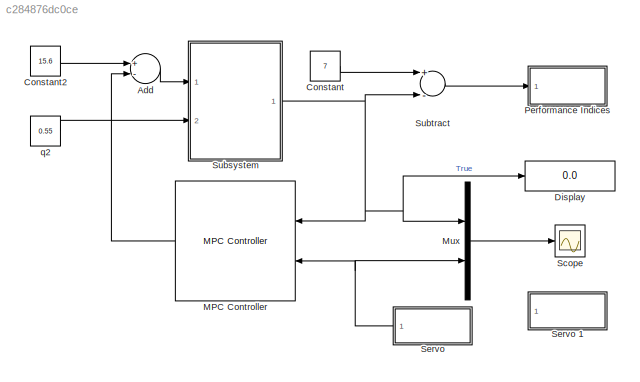
MODEL slx_c284876dc0ce
KIND model
CONFIG AbsTol = auto
CONFIG EnableMultiTasking = on
CONFIG FixedStep = auto
CONFIG MaxStep = auto
CONFIG MinStep = auto
CONFIG RelTol = 1e-3
CONFIG SampleTimeConstraint = Unconstrained
CONFIG Solver = ode45
CONFIG SolverName = ode45
CONFIG StartTime = 0.0
CONFIG StopTime = 10000
BLOCK [Sum] Add
  InputSameDT = off
  Inputs = +-
  OutDataTypeStr = Inherit: Inherit via internal rule
  Ports = [2, 1]
  SaturateOnIntegerOverflow = off
BLOCK [Constant] Constant
  Value = 7
BLOCK [Constant] Constant2
  Value = 15.6
BLOCK [Display] Display
  Decimation = 1
  Ports = [1]
BLOCK [Reference] MPC Controller  REF=mpclib/MPC Controller  (lib defined in mdl_ae329e0e0455)
  Ports = [2, 1]
  SCDEnableBlockLinearizationSpecification = on
  SourceBlock = mpclib/MPC Controller
  SourceProductBaseCode = Missing
  SourceProductName = MATLAB Runtime - Model Predictive Control Toolbox Addin
  SourceType = MPC
BLOCK [Mux] Mux
  DisplayOption = bar
  Inputs = 2
  Ports = [2, 1]
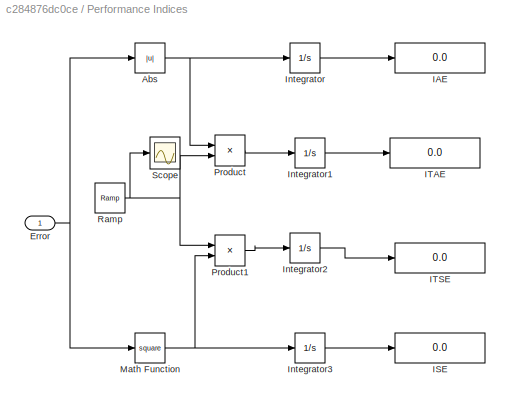
BLOCK [SubSystem] Performance Indices
  Ports = [1]
  RequestExecContextInheritance = off
BLOCK [Abs] Performance Indices/Abs
  SaturateOnIntegerOverflow = off
BLOCK [Inport] Performance Indices/Error 
  IconDisplay = Port number
BLOCK [Display] Performance Indices/IAE
  Decimation = 1
  Ports = [1]
BLOCK [Display] Performance Indices/ISE
  Decimation = 1
  Ports = [1]
BLOCK [Display] Performance Indices/ITAE
  Decimation = 1
  Ports = [1]
BLOCK [Display] Performance Indices/ITSE
  Decimation = 1
  Ports = [1]
BLOCK [Integrator] Performance Indices/Integrator
  Ports = [1, 1]
BLOCK [Integrator] Performance Indices/Integrator1
  Ports = [1, 1]
BLOCK [Integrator] Performance Indices/Integrator2
  Ports = [1, 1]
BLOCK [Integrator] Performance Indices/Integrator3
  Ports = [1, 1]
BLOCK [Math] Performance Indices/Math Function
  Operator = square
  Ports = [1, 1]
BLOCK [Product] Performance Indices/Product
  InputSameDT = off
  OutDataTypeStr = Inherit: Inherit via internal rule
  Ports = [2, 1]
  SaturateOnIntegerOverflow = off
BLOCK [Product] Performance Indices/Product1
  InputSameDT = off
  OutDataTypeStr = Inherit: Inherit via internal rule
  Ports = [2, 1]
  SaturateOnIntegerOverflow = off
BLOCK [Reference] Performance Indices/Ramp  REF=simulink/Sources/Ramp
  Ports = [0, 1]
  SourceBlock = simulink/Sources/Ramp
  SourceProductBaseCode = SL
  SourceProductName = Simulink
  SourceType = Ramp
BLOCK [Scope] Performance Indices/Scope
  Floating = off
  NumInputPorts = 1
  Ports = [1]
  ScopeSpecificationString = Simulink.scopes.TimeScopeBlockCfg('CurrentConfiguration', extmgr.ConfigurationSet(extmgr.Configuration('Core','General UI',true),extmgr.Configuration('Core','Source UI',true),extmgr.Configuration('Sources','WiredSimulink',true,'DataLoggingLimitDataPoints',true,'DataLoggingSaveFormat','Array','DataLoggingDecimation','1','DataLoggingDecimateData',true),extmgr.Configuration('Visuals','Time Domain',tr...<+860ch>
BLOCK [Scope] Scope
  Floating = off
  NumInputPorts = 1
  Ports = [1]
  ScopeSpecificationString = Simulink.scopes.TimeScopeBlockCfg('CurrentConfiguration', extmgr.ConfigurationSet(extmgr.Configuration('Core','General UI',true),extmgr.Configuration('Core','Source UI',true),extmgr.Configuration('Sources','WiredSimulink',true,'DataLoggingVariableName','ScopeData2'),extmgr.Configuration('Visuals','Time Domain',true,'SerializedDisplays',{struct('MinYLimReal','2.89594','MaxYLimReal','7.45814','YLabe...<+1396ch>
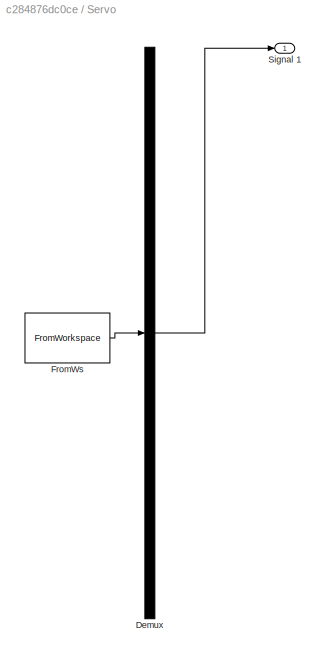
BLOCK [SubSystem] Servo 
  ClipboardFcn = sigbuilder_block('clipboard');
  CloseFcn = sigbuilder_block('close');
  ContinueFcn = sigbuilder_block('continue')
  CopyFcn = sigbuilder_block('copy');
  DeleteFcn = sigbuilder_block('delete');
  LoadFcn = sigbuilder_block('load');
  MaskHideContents = on
  ModelCloseFcn = sigbuilder_block('modelClose');
  NameChangeFcn = sigbuilder_block('namechange');
  OpenFcn = sigbuilder_block('open',[203.25 112.5 550.5 399.75 ]);
  PauseFcn = sigbuilder_block('pause')
  Ports = [0, 1]
  PreSaveFcn = sigbuilder_block('preSave');
  RequestExecContextInheritance = off
  StartFcn = sigbuilder_block('start');
  StopFcn = sigbuilder_block('stop');
  Tag = STV Subsys
BLOCK [Demux] Servo /Demux
  Outputs = 1
  Ports = [1, 1]
  Tag = STV Demux
BLOCK [FromWorkspace] Servo /FromWs
  SampleTime = 0
  Tag = STV FromWs
  VariableName = tuvar
  ZeroCross = on
BLOCK [Outport] Servo /Signal 1
  IconDisplay = Port number
  Tag = STV Outport
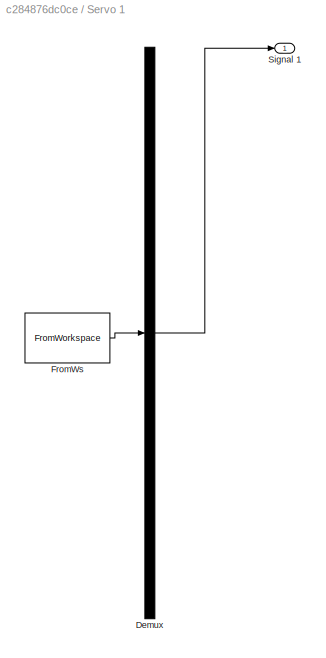
BLOCK [SubSystem] Servo 1
  ClipboardFcn = sigbuilder_block('clipboard');
  CloseFcn = sigbuilder_block('close');
  ContinueFcn = sigbuilder_block('continue')
  CopyFcn = sigbuilder_block('copy');
  DeleteFcn = sigbuilder_block('delete');
  LoadFcn = sigbuilder_block('load');
  MaskHideContents = on
  ModelCloseFcn = sigbuilder_block('modelClose');
  NameChangeFcn = sigbuilder_block('namechange');
  OpenFcn = sigbuilder_block('open',[203.25 112.5 550.5 399.75 ]);
  PauseFcn = sigbuilder_block('pause')
  Ports = [0, 1]
  PreSaveFcn = sigbuilder_block('preSave');
  RequestExecContextInheritance = off
  StartFcn = sigbuilder_block('start');
  StopFcn = sigbuilder_block('stop');
  Tag = STV Subsys
BLOCK [Demux] Servo 1/Demux
  Outputs = 1
  Ports = [1, 1]
  Tag = STV Demux
BLOCK [FromWorkspace] Servo 1/FromWs
  SampleTime = 0
  Tag = STV FromWs
  VariableName = tuvar
  ZeroCross = on
BLOCK [Outport] Servo 1/Signal 1
  IconDisplay = Port number
  Tag = STV Outport
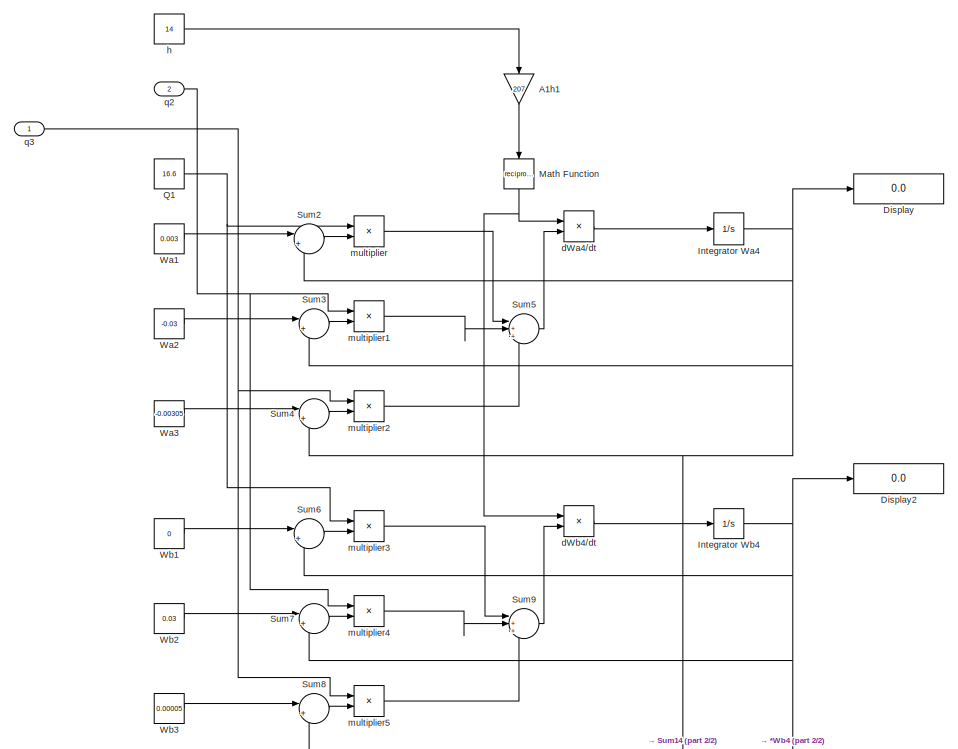
[diagram: Subsystem - part 1/2, full width, top band]
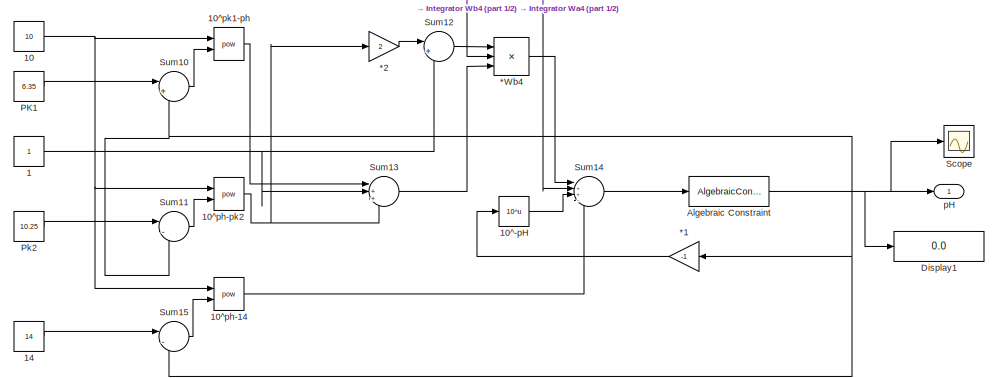
[diagram: Subsystem - part 2/2, full width, bottom band]
BLOCK [SubSystem] Subsystem
  Ports = [2, 1]
  RequestExecContextInheritance = off
BLOCK [Gain] Subsystem/*1
  Gain = -1
  OutDataTypeStr = Inherit: Inherit via internal rule
  ParamDataTypeStr = Inherit: Inherit via internal rule
  SaturateOnIntegerOverflow = off
BLOCK [Gain] Subsystem/*2
  Gain = 2
  OutDataTypeStr = Inherit: Inherit via internal rule
  ParamDataTypeStr = Inherit: Inherit via internal rule
  SaturateOnIntegerOverflow = off
BLOCK [Product] Subsystem/*Wb4
  InputSameDT = off
  Inputs = **/
  OutDataTypeStr = Inherit: Inherit via internal rule
  Ports = [3, 1]
  RndMeth = Floor
  SaturateOnIntegerOverflow = off
BLOCK [Constant] Subsystem/1
BLOCK [Constant] Subsystem/10
  Value = 10
BLOCK [Math] Subsystem/10^-pH
  Operator = 10^u
  Ports = [1, 1]
BLOCK [Math] Subsystem/10^ph-14
  Operator = pow
  Ports = [2, 1]
BLOCK [Math] Subsystem/10^ph-pk2
  Operator = pow
  Ports = [2, 1]
BLOCK [Math] Subsystem/10^pk1-ph
  Operator = pow
  Ports = [2, 1]
BLOCK [Constant] Subsystem/14
  Value = 14
BLOCK [Gain] Subsystem/A1h1
  Gain = 207
  OutDataTypeStr = Inherit: Inherit via internal rule
  ParamDataTypeStr = Inherit: Inherit via internal rule
  SaturateOnIntegerOverflow = off
BLOCK [AlgebraicConstraint] Subsystem/Algebraic Constraint
  InitialGuess = 7
BLOCK [Display] Subsystem/Display
  Decimation = 1
  Ports = [1]
BLOCK [Display] Subsystem/Display1
  Decimation = 1
  Ports = [1]
BLOCK [Display] Subsystem/Display2
  Decimation = 1
  Ports = [1]
BLOCK [Integrator] Subsystem/Integrator Wa4
  InitialCondition = -0.000432
  Ports = [1, 1]
BLOCK [Integrator] Subsystem/Integrator Wb4
  InitialCondition = 0.000528
  Ports = [1, 1]
BLOCK [Math] Subsystem/Math Function
  Operator = reciprocal
  Ports = [1, 1]
BLOCK [Constant] Subsystem/PK1
  Value = 6.35
BLOCK [Constant] Subsystem/Pk2
  Value = 10.25
BLOCK [Constant] Subsystem/Q1
  Value = 16.6
BLOCK [Scope] Subsystem/Scope
  Floating = off
  NumInputPorts = 1
  Ports = [1]
  ScopeSpecificationString = Simulink.scopes.TimeScopeBlockCfg('CurrentConfiguration', extmgr.ConfigurationSet(extmgr.Configuration('Core','General UI',true),extmgr.Configuration('Core','Source UI',true),extmgr.Configuration('Sources','WiredSimulink',true,'DataLoggingVariableName','ScopeData1'),extmgr.Configuration('Visuals','Time Domain',true,'SerializedDisplays',{struct('MinYLimReal','8.21783','MaxYLimReal','8.22243','YLabe...<+1405ch>
BLOCK [Sum] Subsystem/Sum10
  IconShape = round
  InputSameDT = off
  Inputs = |+-
  OutDataTypeStr = Inherit: Inherit via internal rule
  Ports = [2, 1]
  SaturateOnIntegerOverflow = off
BLOCK [Sum] Subsystem/Sum11
  IconShape = round
  InputSameDT = off
  Inputs = |-+
  OutDataTypeStr = Inherit: Inherit via internal rule
  Ports = [2, 1]
  SaturateOnIntegerOverflow = off
BLOCK [Sum] Subsystem/Sum12
  IconShape = round
  InputSameDT = off
  Inputs = |++
  OutDataTypeStr = Inherit: Inherit via internal rule
  Ports = [2, 1]
  SaturateOnIntegerOverflow = off
BLOCK [Sum] Subsystem/Sum13
  IconShape = round
  InputSameDT = off
  Inputs = |+++
  OutDataTypeStr = Inherit: Inherit via internal rule
  Ports = [3, 1]
  SaturateOnIntegerOverflow = off
BLOCK [Sum] Subsystem/Sum14
  IconShape = round
  InputSameDT = off
  Inputs = |++-+
  OutDataTypeStr = Inherit: Inherit via internal rule
  Ports = [4, 1]
  SaturateOnIntegerOverflow = off
BLOCK [Sum] Subsystem/Sum15
  IconShape = round
  InputSameDT = off
  Inputs = |-+
  OutDataTypeStr = Inherit: Inherit via internal rule
  Ports = [2, 1]
  SaturateOnIntegerOverflow = off
BLOCK [Sum] Subsystem/Sum2
  IconShape = round
  InputSameDT = off
  Inputs = |+-
  OutDataTypeStr = Inherit: Inherit via internal rule
  Ports = [2, 1]
  SaturateOnIntegerOverflow = off
BLOCK [Sum] Subsystem/Sum3
  IconShape = round
  InputSameDT = off
  Inputs = |+-
  OutDataTypeStr = Inherit: Inherit via internal rule
  Ports = [2, 1]
  SaturateOnIntegerOverflow = off
BLOCK [Sum] Subsystem/Sum4
  IconShape = round
  InputSameDT = off
  Inputs = |+-
  OutDataTypeStr = Inherit: Inherit via internal rule
  Ports = [2, 1]
  SaturateOnIntegerOverflow = off
BLOCK [Sum] Subsystem/Sum5
  IconShape = round
  InputSameDT = off
  Inputs = |+++
  OutDataTypeStr = Inherit: Inherit via internal rule
  Ports = [3, 1]
  SaturateOnIntegerOverflow = off
BLOCK [Sum] Subsystem/Sum6
  IconShape = round
  InputSameDT = off
  Inputs = |+-
  OutDataTypeStr = Inherit: Inherit via internal rule
  Ports = [2, 1]
  SaturateOnIntegerOverflow = off
BLOCK [Sum] Subsystem/Sum7
  IconShape = round
  InputSameDT = off
  Inputs = |+-
  OutDataTypeStr = Inherit: Inherit via internal rule
  Ports = [2, 1]
  SaturateOnIntegerOverflow = off
BLOCK [Sum] Subsystem/Sum8
  IconShape = round
  InputSameDT = off
  Inputs = |+-
  OutDataTypeStr = Inherit: Inherit via internal rule
  Ports = [2, 1]
  SaturateOnIntegerOverflow = off
BLOCK [Sum] Subsystem/Sum9
  IconShape = round
  InputSameDT = off
  Inputs = |+++
  OutDataTypeStr = Inherit: Inherit via internal rule
  Ports = [3, 1]
  SaturateOnIntegerOverflow = off
BLOCK [Constant] Subsystem/Wa1
  Value = 0.003
BLOCK [Constant] Subsystem/Wa2
  Value = -0.03
BLOCK [Constant] Subsystem/Wa3
  Value = -0.00305
BLOCK [Constant] Subsystem/Wb1
  Value = 0
BLOCK [Constant] Subsystem/Wb2
  Value = 0.03
BLOCK [Constant] Subsystem/Wb3
  Value = 0.00005
BLOCK [Product] Subsystem/dWa4//dt
  InputSameDT = off
  OutDataTypeStr = Inherit: Inherit via internal rule
  Ports = [2, 1]
  RndMeth = Floor
  SaturateOnIntegerOverflow = off
BLOCK [Product] Subsystem/dWb4//dt
  InputSameDT = off
  OutDataTypeStr = Inherit: Inherit via internal rule
  Ports = [2, 1]
  RndMeth = Floor
  SaturateOnIntegerOverflow = off
BLOCK [Constant] Subsystem/h
  Value = 14
BLOCK [Product] Subsystem/multiplier
  InputSameDT = off
  OutDataTypeStr = Inherit: Inherit via internal rule
  Ports = [2, 1]
  RndMeth = Floor
  SaturateOnIntegerOverflow = off
BLOCK [Product] Subsystem/multiplier1
  InputSameDT = off
  OutDataTypeStr = Inherit: Inherit via internal rule
  Ports = [2, 1]
  RndMeth = Floor
  SaturateOnIntegerOverflow = off
BLOCK [Product] Subsystem/multiplier2
  InputSameDT = off
  OutDataTypeStr = Inherit: Inherit via internal rule
  Ports = [2, 1]
  RndMeth = Floor
  SaturateOnIntegerOverflow = off
BLOCK [Product] Subsystem/multiplier3
  InputSameDT = off
  OutDataTypeStr = Inherit: Inherit via internal rule
  Ports = [2, 1]
  RndMeth = Floor
  SaturateOnIntegerOverflow = off
BLOCK [Product] Subsystem/multiplier4
  InputSameDT = off
  OutDataTypeStr = Inherit: Inherit via internal rule
  Ports = [2, 1]
  RndMeth = Floor
  SaturateOnIntegerOverflow = off
BLOCK [Product] Subsystem/multiplier5
  InputSameDT = off
  OutDataTypeStr = Inherit: Inherit via internal rule
  Ports = [2, 1]
  RndMeth = Floor
  SaturateOnIntegerOverflow = off
BLOCK [Outport] Subsystem/pH
  IconDisplay = Port number
BLOCK [Inport] Subsystem/q2
  IconDisplay = Port number
  Port = 2
BLOCK [Inport] Subsystem/q3
  IconDisplay = Port number
BLOCK [Sum] Subtract
  InputSameDT = off
  Inputs = +-
  OutDataTypeStr = Inherit: Inherit via internal rule
  Ports = [2, 1]
  SaturateOnIntegerOverflow = off
BLOCK [Constant] q2
  Value = 0.55
LINE Add:1 -> Subsystem:1
LINE Constant2:1 -> Add:1
LINE Constant:1 -> Subtract:1
LINE MPC Controller:1 -> Add:2
LINE Mux:1 -> Scope:1
NET Performance Indices/Abs:1 -> Performance Indices/Integrator:1, Performance Indices/Product:1
NET Performance Indices/Error :1 -> Performance Indices/Abs:1, Performance Indices/Math Function:1
LINE Performance Indices/Integrator1:1 -> Performance Indices/ITAE:1
LINE Performance Indices/Integrator2:1 -> Performance Indices/ITSE:1
LINE Performance Indices/Integrator3:1 -> Performance Indices/ISE:1
LINE Performance Indices/Integrator:1 -> Performance Indices/IAE:1
NET Performance Indices/Math Function:1 -> Performance Indices/Integrator3:1, Performance Indices/Product1:2
LINE Performance Indices/Product1:1 -> Performance Indices/Integrator2:1
LINE Performance Indices/Product:1 -> Performance Indices/Integrator1:1
NET Performance Indices/Ramp:1 -> Performance Indices/Product1:1, Performance Indices/Product:2, Performance Indices/Scope:1
NET Servo :1 -> MPC Controller:2, Mux:2
LINE Subsystem/*1:1 -> Subsystem/10^-pH:1
LINE Subsystem/*2:1 -> Subsystem/Sum12:1
LINE Subsystem/*Wb4:1 -> Subsystem/Sum14:1
NET Subsystem/10:1 -> Subsystem/10^ph-14:1, Subsystem/10^ph-pk2:1, Subsystem/10^pk1-ph:1
LINE Subsystem/10^-pH:1 -> Subsystem/Sum14:3
LINE Subsystem/10^ph-14:1 -> Subsystem/Sum14:4
NET Subsystem/10^ph-pk2:1 -> Subsystem/*2:1, Subsystem/Sum13:3
LINE Subsystem/10^pk1-ph:1 -> Subsystem/Sum13:1
LINE Subsystem/14:1 -> Subsystem/Sum15:1
NET Subsystem/1:1 -> Subsystem/Sum12:2, Subsystem/Sum13:2
LINE Subsystem/A1h1:1 -> Subsystem/Math Function:1
NET Subsystem/Algebraic Constraint:1 -> Subsystem/*1:1, Subsystem/Display1:1, Subsystem/Scope:1, Subsystem/Sum10:2, Subsystem/Sum11:2, Subsystem/Sum15:2, Subsystem/pH:1
NET Subsystem/Integrator Wa4:1 -> Subsystem/Display:1, Subsystem/Sum14:2, Subsystem/Sum2:2, Subsystem/Sum3:2, Subsystem/Sum4:2
NET Subsystem/Integrator Wb4:1 -> Subsystem/*Wb4:2, Subsystem/Display2:1, Subsystem/Sum6:2, Subsystem/Sum7:2, Subsystem/Sum8:2
NET Subsystem/Math Function:1 -> Subsystem/dWa4//dt:1, Subsystem/dWb4//dt:1
LINE Subsystem/PK1:1 -> Subsystem/Sum10:1
LINE Subsystem/Pk2:1 -> Subsystem/Sum11:1
NET Subsystem/Q1:1 -> Subsystem/multiplier3:1, Subsystem/multiplier:1
LINE Subsystem/Sum10:1 -> Subsystem/10^pk1-ph:2
LINE Subsystem/Sum11:1 -> Subsystem/10^ph-pk2:2
LINE Subsystem/Sum12:1 -> Subsystem/*Wb4:1
LINE Subsystem/Sum13:1 -> Subsystem/*Wb4:3
LINE Subsystem/Sum14:1 -> Subsystem/Algebraic Constraint:1
LINE Subsystem/Sum15:1 -> Subsystem/10^ph-14:2
LINE Subsystem/Sum2:1 -> Subsystem/multiplier:2
LINE Subsystem/Sum3:1 -> Subsystem/multiplier1:2
LINE Subsystem/Sum4:1 -> Subsystem/multiplier2:2
LINE Subsystem/Sum5:1 -> Subsystem/dWa4//dt:2
LINE Subsystem/Sum6:1 -> Subsystem/multiplier3:2
LINE Subsystem/Sum7:1 -> Subsystem/multiplier4:2
LINE Subsystem/Sum8:1 -> Subsystem/multiplier5:2
LINE Subsystem/Sum9:1 -> Subsystem/dWb4//dt:2
LINE Subsystem/Wa1:1 -> Subsystem/Sum2:1
LINE Subsystem/Wa2:1 -> Subsystem/Sum3:1
LINE Subsystem/Wa3:1 -> Subsystem/Sum4:1
LINE Subsystem/Wb1:1 -> Subsystem/Sum6:1
LINE Subsystem/Wb2:1 -> Subsystem/Sum7:1
LINE Subsystem/Wb3:1 -> Subsystem/Sum8:1
LINE Subsystem/dWa4//dt:1 -> Subsystem/Integrator Wa4:1
LINE Subsystem/dWb4//dt:1 -> Subsystem/Integrator Wb4:1
LINE Subsystem/h:1 -> Subsystem/A1h1:1
LINE Subsystem/multiplier1:1 -> Subsystem/Sum5:2
LINE Subsystem/multiplier2:1 -> Subsystem/Sum5:3
LINE Subsystem/multiplier3:1 -> Subsystem/Sum9:1
LINE Subsystem/multiplier4:1 -> Subsystem/Sum9:2
LINE Subsystem/multiplier5:1 -> Subsystem/Sum9:3
LINE Subsystem/multiplier:1 -> Subsystem/Sum5:1
NET Subsystem/q2:1 -> Subsystem/multiplier1:1, Subsystem/multiplier4:1
NET Subsystem/q3:1 -> Subsystem/multiplier2:1, Subsystem/multiplier5:1
NET Subsystem:1 -> Display:1, MPC Controller:1, Mux:1, Subtract:2
LINE Subtract:1 -> Performance Indices:1
LINE q2:1 -> Subsystem:2
note: NET lines group one-source signal fan-out (src -> all destinations, sorted); 1:1 wires keep LINE
